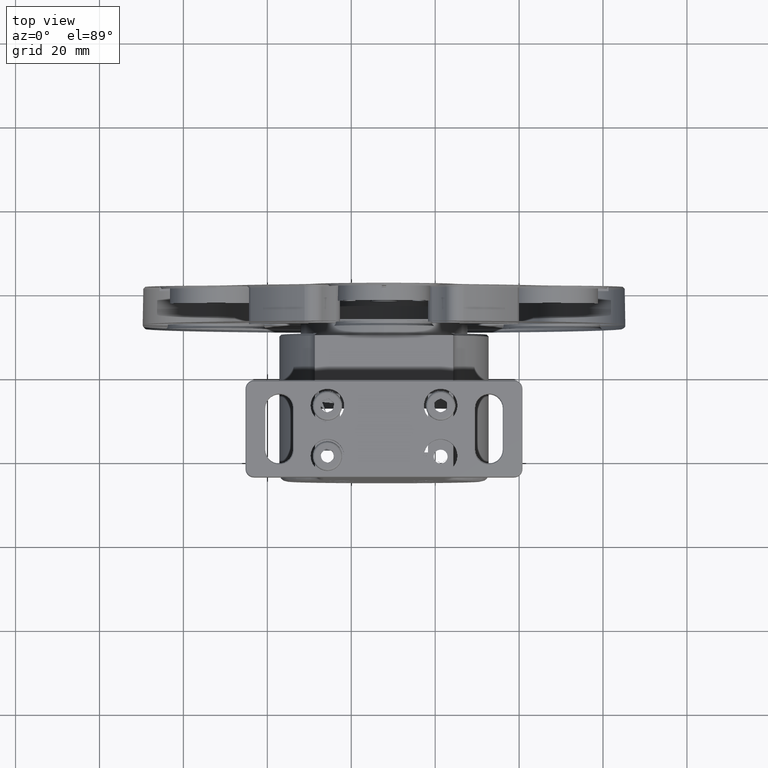
[diagram: clean part render]
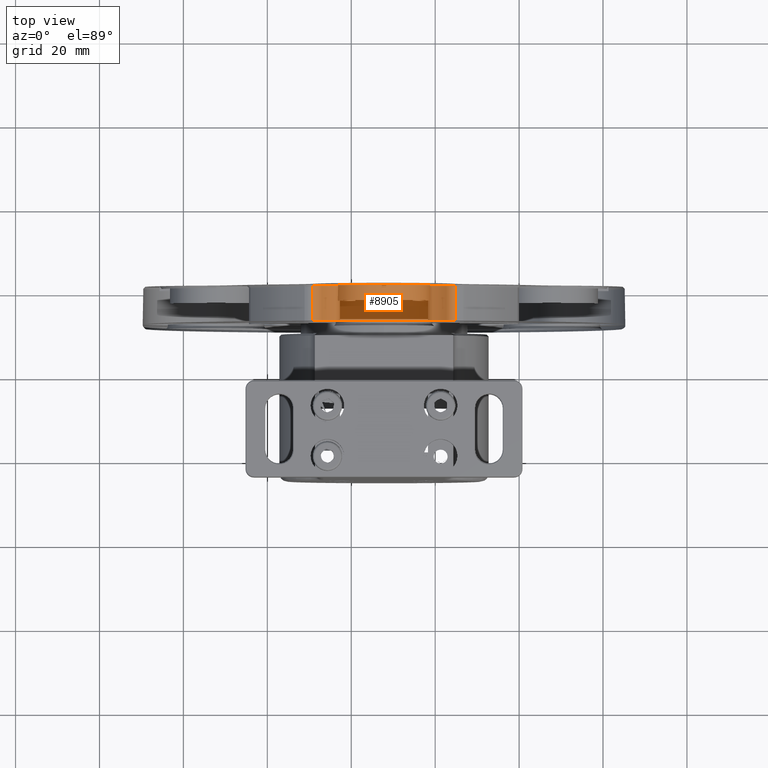
[diagram: same view with one face highlighted and labeled with its STEP entity id]
A machine part, top view. The second image highlights one B-rep face of the part: STEP entity #8905.
In plain terms, the highlighted cylindrical surface (partial cylindrical patch) has radius 17.5 mm, axis along (-0, 1, 0).
Its self-contained STEP definition (entity closure, byte-faithful):
#237 = LINE ( 'NONE', #5664, #11662 ) ;
#300 = DIRECTION ( 'NONE',  ( 3.488278094132890012E-29, -1.000000000000000000, -0.000000000000000000 ) ) ;
#637 = CARTESIAN_POINT ( 'NONE',  ( -32.19565927666613447, 32.06348211055967568, 127.5000000000000000 ) ) ;
#876 = AXIS2_PLACEMENT_3D ( 'NONE', #13255, #13071, #3548 ) ;
#1419 = CARTESIAN_POINT ( 'NONE',  ( -49.32107228507524610, 32.06348211055967568, 113.6014204545097073 ) ) ;
#1863 = CARTESIAN_POINT ( 'NONE',  ( -15.07024626819899282, 32.06348211055967568, 113.6014204545811879 ) ) ;
#2223 = EDGE_CURVE ( 'NONE', #11113, #14786, #13087, .T. ) ;
#2405 = ORIENTED_EDGE ( 'NONE', *, *, #2223, .F. ) ;
#3548 = DIRECTION ( 'NONE',  ( -1.000000000000000000, 0.000000000000000000, 0.000000000000000000 ) ) ;
#3915 = EDGE_CURVE ( 'NONE', #14022, #11113, #237, .T. ) ;
#4563 = FACE_OUTER_BOUND ( 'NONE', #8778, .T. ) ;
#4579 = DIRECTION ( 'NONE',  ( 3.488278094132890012E-29, -1.000000000000000000, -0.000000000000000000 ) ) ;
#5554 = VECTOR ( 'NONE', #8265, 1000.000000000000000 ) ;
#5664 = CARTESIAN_POINT ( 'NONE',  ( -15.07024626819900703, 32.06348211055967568, 113.6014204545811737 ) ) ;
#5909 = CARTESIAN_POINT ( 'NONE',  ( -32.19565927662961968, 32.06348211055967568, 109.9999999999999858 ) ) ;
#6130 = VERTEX_POINT ( 'NONE', #15719 ) ;
#6162 = CYLINDRICAL_SURFACE ( 'NONE', #12395, 17.50000000000000000 ) ;
#6684 = CIRCLE ( 'NONE', #16052, 17.50000000000000000 ) ;
#6910 = DIRECTION ( 'NONE',  ( -3.488278094132890012E-29, 1.000000000000000000, 0.000000000000000000 ) ) ;
#6967 = DIRECTION ( 'NONE',  ( -1.000000000000000000, 0.000000000000000000, 0.000000000000000000 ) ) ;
#7147 = CARTESIAN_POINT ( 'NONE',  ( -32.19565927662961968, 32.06348211055967568, 109.9999999999999858 ) ) ;
#7332 = ORIENTED_EDGE ( 'NONE', *, *, #17479, .T. ) ;
#8265 = DIRECTION ( 'NONE',  ( 3.488278094132890012E-29, -1.000000000000000000, 0.000000000000000000 ) ) ;
#8309 = ORIENTED_EDGE ( 'NONE', *, *, #14674, .T. ) ;
#8778 = EDGE_LOOP ( 'NONE', ( #7332, #16570, #2405, #17181, #8309 ) ) ;
#8905 = ADVANCED_FACE ( 'NONE', ( #4563 ), #6162, .F. ) ;
#8923 = CARTESIAN_POINT ( 'NONE',  ( -32.19565927662961968, 32.06348211055967568, 109.9999999999999858 ) ) ;
#8928 = CARTESIAN_POINT ( 'NONE',  ( -15.07024626819899638, 40.56348211055964725, 113.6014204545811737 ) ) ;
#9992 = DIRECTION ( 'NONE',  ( -3.488278094132890012E-29, 1.000000000000000000, 0.000000000000000000 ) ) ;
#10095 = DIRECTION ( 'NONE',  ( -1.000000000000000000, 0.000000000000000000, 0.000000000000000000 ) ) ;
#10573 = EDGE_CURVE ( 'NONE', #14786, #6130, #14845, .T. ) ;
#10795 = AXIS2_PLACEMENT_3D ( 'NONE', #5909, #4579, #10095 ) ;
#11113 = VERTEX_POINT ( 'NONE', #8928 ) ;
#11662 = VECTOR ( 'NONE', #6910, 1000.000000000000000 ) ;
#12395 = AXIS2_PLACEMENT_3D ( 'NONE', #8923, #9992, #15408 ) ;
#13071 = DIRECTION ( 'NONE',  ( 3.488278094132890012E-29, -1.000000000000000000, -0.000000000000000000 ) ) ;
#13087 = CIRCLE ( 'NONE', #876, 17.50000000000000000 ) ;
#13255 = CARTESIAN_POINT ( 'NONE',  ( -32.19565927662961968, 40.56348211055964725, 109.9999999999999858 ) ) ;
#13582 = VERTEX_POINT ( 'NONE', #637 ) ;
#13924 = CIRCLE ( 'NONE', #10795, 17.50000000000000000 ) ;
#14022 = VERTEX_POINT ( 'NONE', #1863 ) ;
#14674 = EDGE_CURVE ( 'NONE', #14022, #13582, #13924, .T. ) ;
#14786 = VERTEX_POINT ( 'NONE', #16923 ) ;
#14845 = LINE ( 'NONE', #1419, #5554 ) ;
#15408 = DIRECTION ( 'NONE',  ( -1.000000000000000000, 0.000000000000000000, 0.000000000000000000 ) ) ;
#15719 = CARTESIAN_POINT ( 'NONE',  ( -49.32107228507524610, 32.06348211055967568, 113.6014204545096931 ) ) ;
#16052 = AXIS2_PLACEMENT_3D ( 'NONE', #7147, #300, #6967 ) ;
#16570 = ORIENTED_EDGE ( 'NONE', *, *, #10573, .F. ) ;
#16923 = CARTESIAN_POINT ( 'NONE',  ( -49.32107228507524610, 40.56348211055964725, 113.6014204545097073 ) ) ;
#17181 = ORIENTED_EDGE ( 'NONE', *, *, #3915, .F. ) ;
#17479 = EDGE_CURVE ( 'NONE', #13582, #6130, #6684, .T. ) ;